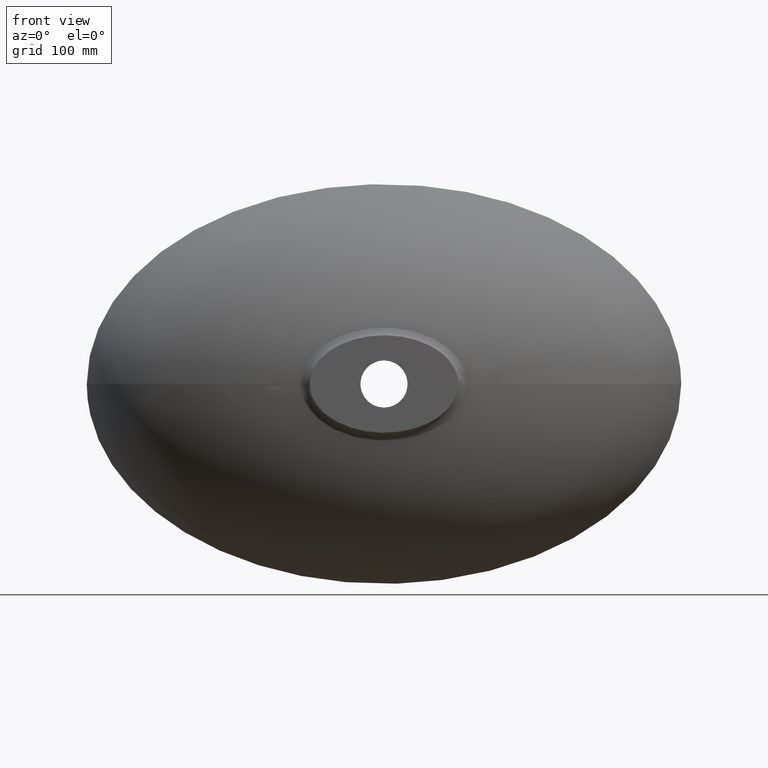
[diagram: clean part render]
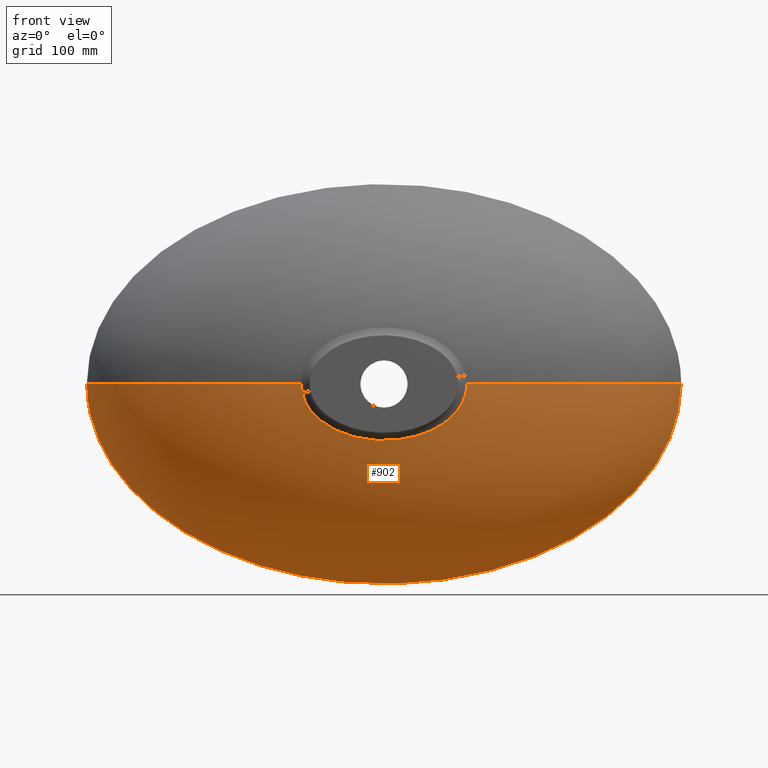
[diagram: same view with one face highlighted and labeled with its STEP entity id]
A machine part, front view. The second image highlights one B-rep face of the part: STEP entity #902.
In plain terms, the highlighted face is a freeform B-spline surface patch.
Its self-contained STEP definition (entity closure, byte-faithful):
#4 = ORIENTED_EDGE ( 'NONE', *, *, #1449, .F. ) ;
#71 = EDGE_CURVE ( 'NONE', #1730, #1499, #2945, .T. ) ;
#130 = CARTESIAN_POINT ( 'NONE',  ( -59.02924180658407500, -135.5562198857587400, -38.02974396639694300 ) ) ;
#155 = CARTESIAN_POINT ( 'NONE',  ( -173.8559272880811200, -64.17624587366015000, -119.6889019088782600 ) ) ;
#158 = CARTESIAN_POINT ( 'NONE',  ( -63.84233516379435300, -59.78963586575874000, -163.8237744246045500 ) ) ;
#163 = CARTESIAN_POINT ( 'NONE',  ( -122.5062706894699000, -61.70877774421897000, -146.8455914394254800 ) ) ;
#173 = CARTESIAN_POINT ( 'NONE',  ( 122.5062706894468200, -61.70877774415680500, -146.8455914395328000 ) ) ;
#175 = CARTESIAN_POINT ( 'NONE',  ( -213.2424459445009300, -66.64371400309627800, -84.32354849031565900 ) ) ;
#179 = CARTESIAN_POINT ( 'NONE',  ( 1.452532597303188600E-012, -58.96714648926533200, -169.8539801326967100 ) ) ;
#184 = CARTESIAN_POINT ( 'NONE',  ( 173.8559272880406500, -64.17624587358103800, -119.6889019090324800 ) ) ;
#189 = CARTESIAN_POINT ( 'NONE',  ( 63.84233516378849800, -59.78963586572481100, -163.8237744246594900 ) ) ;
#201 = CARTESIAN_POINT ( 'NONE',  ( 48.74870392146858900, -98.76286235298307800, 128.9041599598591900 ) ) ;
#211 = CARTESIAN_POINT ( 'NONE',  ( 43.13603856807236500, -135.1104343389680500, -50.52999021383957500 ) ) ;
#213 = CARTESIAN_POINT ( 'NONE',  ( -72.17867248968366300, -137.0000000000000000, 5.620241344210579200 ) ) ;
#254 = CARTESIAN_POINT ( 'NONE',  ( 213.2424459445662400, -66.64371400314385600, 84.32354849013060500 ) ) ;
#258 = CARTESIAN_POINT ( 'NONE',  ( 173.8559272881767600, -64.17624587370724500, 119.6889019087483300 ) ) ;
#259 = CARTESIAN_POINT ( 'NONE',  ( 122.5062706895887600, -61.70877774425552100, 146.8455914393535700 ) ) ;
#266 = CARTESIAN_POINT ( 'NONE',  ( 63.84233516388601300, -59.78963586576330900, 163.8237744245978100 ) ) ;
#268 = CARTESIAN_POINT ( 'NONE',  ( 8.237344878871289700E-011, -58.96714648926304400, 169.8539801327034100 ) ) ;
#272 = CARTESIAN_POINT ( 'NONE',  ( -63.84233516372609100, -59.78963586572935900, 163.8237744246408200 ) ) ;
#278 = CARTESIAN_POINT ( 'NONE',  ( -122.5062706893816400, -61.70877774415693300, 146.8455914394889700 ) ) ;
#279 = CARTESIAN_POINT ( 'NONE',  ( -173.8559272880131900, -64.17624587359813400, 119.6889019089305600 ) ) ;
#283 = CARTESIAN_POINT ( 'NONE',  ( -213.2424459444549100, -66.64371400304757700, 84.32354849034554400 ) ) ;
#285 = CARTESIAN_POINT ( 'NONE',  ( -236.1822520568000500, -68.43491308961702700, 46.62212627317471500 ) ) ;
#289 = CARTESIAN_POINT ( 'NONE',  ( -242.5347347814676200, -69.00974177607710700, 19.75045146153644600 ) ) ;
#293 = CARTESIAN_POINT ( 'NONE',  ( -243.5436501278094000, -69.10295723874942600, 5.125069546726873400 ) ) ;
#295 = CARTESIAN_POINT ( 'NONE',  ( -243.6307999830114000, -69.11118213251511100, 2.196458377168620100 ) ) ;
#299 = CARTESIAN_POINT ( 'NONE',  ( -243.6307999830119700, -69.11118213251576500, -2.862293735361731700E-014 ) ) ;
#301 = CARTESIAN_POINT ( 'NONE',  ( -263.1793806657407800, -48.91630512710069900, -1.994931997373328200E-014 ) ) ;
#302 = CARTESIAN_POINT ( 'NONE',  ( -72.47446810728394000, -137.0000000000000000, 1.458451061544785200 ) ) ;
#304 = CARTESIAN_POINT ( 'NONE',  ( 213.2424459444520200, -66.64371400301718000, -84.32354849050857100 ) ) ;
#308 = CARTESIAN_POINT ( 'NONE',  ( -263.1793806657412300, -48.91630512710124600, -2.349247688667063000 ) ) ;
#312 = CARTESIAN_POINT ( 'NONE',  ( -263.0855331633708800, -48.90941777544663400, -5.481577940223020900 ) ) ;
#315 = CARTESIAN_POINT ( 'NONE',  ( -261.9989204099375100, -48.83136112335640900, -21.12414883927776500 ) ) ;
#319 = CARTESIAN_POINT ( 'NONE',  ( -255.1562607832648000, -48.35001176878423500, -49.86287924189522900 ) ) ;
#321 = CARTESIAN_POINT ( 'NONE',  ( -230.4235846413977200, -46.85009963051857100, -90.15383580170768600 ) ) ;
#325 = CARTESIAN_POINT ( 'NONE',  ( -187.9017891536524300, -44.78389413392255100, -127.9390747141883900 ) ) ;
#327 = CARTESIAN_POINT ( 'NONE',  ( -132.4197209826210700, -42.71768863732229700, -156.9159428333175600 ) ) ;
#329 = B_SPLINE_CURVE_WITH_KNOTS ( 'NONE', 3,
 ( #2568, #4298, #3697, #3780, #2640, #761, #2009, #1915, #1324, #1537, #1556, #2352, #4275, #1685, #4134, #4094, #1976, #1941, #949, #2022, #988, #2348, #1991, #1920, #825, #2066, #493, #1617, #745, #1330, #1311, #1524, #1559, #1435, #556, #802, #987, #455, #490, #480, #471, #461, #1504, #1586, #1381, #792, #618, #1681, #469, #2335, #2329, #488, #2285, #130, #3800, #1372, #427, #1420, #4199, #4191, #4186, #4180, #4192, #4101, #4036, #4022, #3977, #3877 ),
 .UNSPECIFIED., .F., .F.,
 ( 4, 2, 2, 2, 2, 2, 2, 2, 2, 2, 2, 2, 2, 2, 2, 2, 2, 2, 2, 2, 2, 2, 2, 2, 2, 2, 2, 2, 2, 2, 2, 2, 2, 4 ),
 ( 0.2183000590646245200, 0.2248443422403199100, 0.2313886254160152600, 0.2330246962099391300, 0.2346607670038629600, 0.2379329085917106800, 0.2444771917674060900, 0.2477493333552537900, 0.2510214749431015100, 0.2575657581187969500, 0.2641100412944923400, 0.2673821828823400600, 0.2706543244701877800, 0.2771986076458832200, 0.2837428908215786600, 0.2902871739972741100, 0.2968314571729695500, 0.3099200235243604300, 0.3230085898757513200, 0.3295528730514467600, 0.3360971562271422000, 0.3491857225785330900, 0.3622742889299239700, 0.3688185721056194100, 0.3720907136934671300, 0.3753628552813148600, 0.3884514216327057400, 0.3949957048084011800, 0.4015399879840966200, 0.4080842711597920700, 0.4113564127476397900, 0.4146285543354875100, 0.4211728375111830600, 0.4277171206868785000 ),
 .UNSPECIFIED. ) ;
#331 = CARTESIAN_POINT ( 'NONE',  ( -69.02525204124819400, -41.11063991773930600, -174.9927978614268200 ) ) ;
#338 = CARTESIAN_POINT ( 'NONE',  ( 1.288235363333485400E-012, -40.42190475219499000, -181.4007009182672300 ) ) ;
#344 = CARTESIAN_POINT ( 'NONE',  ( 69.02525204124310700, -41.11063991771089100, -174.9927978614704500 ) ) ;
#345 = CARTESIAN_POINT ( 'NONE',  ( 132.4197209826008900, -42.71768863727021400, -156.9159428334028500 ) ) ;
#348 = CARTESIAN_POINT ( 'NONE',  ( 187.9017891536169600, -44.78389413385625800, -127.9390747143109600 ) ) ;
#354 = CARTESIAN_POINT ( 'NONE',  ( 230.4235846413546700, -46.85009963045228400, -90.15383580186100700 ) ) ;
#355 = CARTESIAN_POINT ( 'NONE',  ( 256.9228805076819000, -48.45714835006846500, -46.98495377345452100 ) ) ;
#359 = CARTESIAN_POINT ( 'NONE',  ( 266.3076307447705600, -49.14588351561123100, -1.248892372479834100E-010 ) ) ;
#369 = CARTESIAN_POINT ( 'NONE',  ( 256.9228805076766100, -48.45714835009074100, 46.98495377321626900 ) ) ;
#370 = CARTESIAN_POINT ( 'NONE',  ( 230.4235846414530000, -46.85009963055844700, 90.15383580156057500 ) ) ;
#373 = CARTESIAN_POINT ( 'NONE',  ( 187.9017891537342300, -44.78389413396204300, 127.9390747140849700 ) ) ;
#381 = CARTESIAN_POINT ( 'NONE',  ( 132.4197209827231900, -42.71768863735297800, 156.9159428332601500 ) ) ;
#382 = CARTESIAN_POINT ( 'NONE',  ( 69.02525204132712100, -41.11063991774324900, 174.9927978614211100 ) ) ;
#385 = CARTESIAN_POINT ( 'NONE',  ( 7.098261425525146500E-011, -40.42190475219320000, 181.4007009182722600 ) ) ;
#395 = CARTESIAN_POINT ( 'NONE',  ( -69.02525204118941800, -41.11063991771483500, 174.9927978614553300 ) ) ;
#396 = CARTESIAN_POINT ( 'NONE',  ( -132.4197209825451000, -42.71768863727047000, 156.9159428333677800 ) ) ;
#399 = CARTESIAN_POINT ( 'NONE',  ( -187.9017891535939700, -44.78389413387070300, 127.9390747142297500 ) ) ;
#412 = CARTESIAN_POINT ( 'NONE',  ( -230.4235846413580500, -46.85009963047785700, 90.15383580173133300 ) ) ;
#413 = CARTESIAN_POINT ( 'NONE',  ( -255.1562607832434300, -48.35001176876079400, 49.86287924190230600 ) ) ;
#416 = CARTESIAN_POINT ( 'NONE',  ( -261.9989204099285300, -48.83136112334649000, 21.12414883927876400 ) ) ;
#424 = CARTESIAN_POINT ( 'NONE',  ( -263.0855331633685500, -48.90941777544407600, 5.481577940223027100 ) ) ;
#425 = CARTESIAN_POINT ( 'NONE',  ( -263.1793806657403300, -48.91630512710015200, 2.349247688666981700 ) ) ;
#427 = CARTESIAN_POINT ( 'NONE',  ( -65.74196979346801600, -135.6178262052567600, -32.50356334726849600 ) ) ;
#434 = CARTESIAN_POINT ( 'NONE',  ( -263.1793806657407800, -48.91630512710069900, -1.994931997373328200E-014 ) ) ;
#435 = CARTESIAN_POINT ( 'NONE',  ( -279.0446928655382000, -25.71561693092820600, -1.778091562876227300E-014 ) ) ;
#440 = CARTESIAN_POINT ( 'NONE',  ( -149.5483607791291000, -119.4932239484619300, -1.170938346284344800E-014 ) ) ;
#441 = CARTESIAN_POINT ( 'NONE',  ( 204.3586650915047800, -91.44892514422022600, -38.45683207613970500 ) ) ;
#447 = CARTESIAN_POINT ( 'NONE',  ( -279.0446928655384800, -25.71561693092853000, -2.474542440657093900 ) ) ;
#452 = CARTESIAN_POINT ( 'NONE',  ( -278.9456824111993000, -25.71158569724517700, -5.773932361533109500 ) ) ;
#455 = CARTESIAN_POINT ( 'NONE',  ( 2.211029642755300000, -135.3504287895447100, -55.20215966721779200 ) ) ;
#458 = CARTESIAN_POINT ( 'NONE',  ( -277.7990212454800500, -25.66589838216443200, -22.25054792899835800 ) ) ;
#461 = CARTESIAN_POINT ( 'NONE',  ( -12.90504068536761500, -135.3579184512225000, -54.58554758473471200 ) ) ;
#466 = CARTESIAN_POINT ( 'NONE',  ( 237.8208096362755600, -68.56285588151703800, -43.92916754351696800 ) ) ;
#468 = CARTESIAN_POINT ( 'NONE',  ( -270.5765975104307000, -25.38415993915722900, -52.51911824181863200 ) ) ;
#469 = CARTESIAN_POINT ( 'NONE',  ( -41.99779509018209500, -135.4460698578190500, -47.32129674425665700 ) ) ;
#471 = CARTESIAN_POINT ( 'NONE',  ( -6.441797463400857500, -135.3522916885395100, -55.04936953875277800 ) ) ;
#473 = CARTESIAN_POINT ( 'NONE',  ( -244.4330199224356500, -24.50624682580491500, -94.91489024333330300 ) ) ;
#476 = CARTESIAN_POINT ( 'NONE',  ( -199.3898256838543800, -23.29687672067346000, -134.6617719912613900 ) ) ;
#480 = CARTESIAN_POINT ( 'NONE',  ( -4.269342483823853000, -135.3511058937487500, -55.14664769401988300 ) ) ;
#485 = CARTESIAN_POINT ( 'NONE',  ( -140.5426935410144200, -22.08750661553952800, -165.0922245721956500 ) ) ;
#487 = CARTESIAN_POINT ( 'NONE',  ( -73.28735179797017500, -21.14688542265464500, -184.0233555587163000 ) ) ;
#488 = CARTESIAN_POINT ( 'NONE',  ( -49.89613770482630900, -135.4885866795205200, -43.75400737023761600 ) ) ;
#490 = CARTESIAN_POINT ( 'NONE',  ( 0.05561608604010964000, -135.3501722888756300, -55.22296820835300200 ) ) ;
#491 = CARTESIAN_POINT ( 'NONE',  ( 8.186267975918611400E-013, -20.74376205427028100, -190.7173074326084900 ) ) ;
#493 = CARTESIAN_POINT ( 'NONE',  ( 49.89920118779402700, -135.4896470879369300, -43.66242667630709200 ) ) ;
#496 = CARTESIAN_POINT ( 'NONE',  ( 73.28735179796690600, -21.14688542263799300, -184.0233555587420500 ) ) ;
#506 = CARTESIAN_POINT ( 'NONE',  ( 140.5426935410016500, -22.08750661550901400, -165.0922245722460700 ) ) ;
#508 = CARTESIAN_POINT ( 'NONE',  ( 199.3898256838318700, -23.29687672063461100, -134.6617719913338600 ) ) ;
#512 = CARTESIAN_POINT ( 'NONE',  ( 244.4330199224084800, -24.50624682576605900, -94.91489024342402600 ) ) ;
#514 = CARTESIAN_POINT ( 'NONE',  ( -22.49756534239881800, -135.0534406494036000, 56.32831686963403000 ) ) ;
#517 = CARTESIAN_POINT ( 'NONE',  ( 272.4439959095722700, -25.44686801867035100, -49.49084881320841600 ) ) ;
#519 = CARTESIAN_POINT ( 'NONE',  ( -228.5580210293836700, -80.15821008482684800, -1.214306433183765000E-014 ) ) ;
#523 = CARTESIAN_POINT ( 'NONE',  ( 282.3450413435217000, -25.84999138705378400, -7.388888401130898600E-011 ) ) ;
#525 = CARTESIAN_POINT ( 'NONE',  ( 272.4439959095686800, -25.44686801868336800, 49.49084881306746600 ) ) ;
#527 = CARTESIAN_POINT ( 'NONE',  ( 244.4330199224709200, -24.50624682582815000, 94.91489024324634700 ) ) ;
#530 = CARTESIAN_POINT ( 'NONE',  ( 199.3898256839063700, -23.29687672069647100, 134.6617719912004000 ) ) ;
#537 = CARTESIAN_POINT ( 'NONE',  ( 140.5426935410793900, -22.08750661555738400, 165.0922245721619400 ) ) ;
#539 = CARTESIAN_POINT ( 'NONE',  ( 73.28735179802029600, -21.14688542265685500, 184.0233555587132900 ) ) ;
#540 = CARTESIAN_POINT ( 'NONE',  ( 22.49756534241760900, -135.0534406494046200, 56.32831686962708100 ) ) ;
#544 = CARTESIAN_POINT ( 'NONE',  ( 4.508255256872003100E-011, -20.74376205426914800, 190.7173074326119000 ) ) ;
#551 = CARTESIAN_POINT ( 'NONE',  ( -73.28735179793282800, -21.14688542264023500, 184.0233555587335000 ) ) ;
#553 = CARTESIAN_POINT ( 'NONE',  ( -140.5426935409662100, -22.08750661550911700, 165.0922245722256300 ) ) ;
#556 = CARTESIAN_POINT ( 'NONE',  ( 21.41057721125741900, -135.3728711537178000, -53.35261967520378300 ) ) ;
#558 = CARTESIAN_POINT ( 'NONE',  ( -199.3898256838172400, -23.29687672064304800, 134.6617719912860300 ) ) ;
#560 = CARTESIAN_POINT ( 'NONE',  ( -51.86703411855977200, -136.9999999999999400, 33.98184993974604900 ) ) ;
#564 = CARTESIAN_POINT ( 'NONE',  ( -244.4330199224105500, -24.50624682578103400, 94.91489024334741500 ) ) ;
#566 = CARTESIAN_POINT ( 'NONE',  ( -270.5765975104171700, -25.38415993914347600, 52.51911824182283800 ) ) ;
#569 = CARTESIAN_POINT ( 'NONE',  ( -277.7990212454744800, -25.66589838215860600, 22.25054792899892300 ) ) ;
#575 = CARTESIAN_POINT ( 'NONE',  ( -278.9456824111979400, -25.71158569724366700, 5.773932361533082000 ) ) ;
#577 = CARTESIAN_POINT ( 'NONE',  ( -279.0446928655379100, -25.71561693092788700, 2.474542440657014000 ) ) ;
#590 = CARTESIAN_POINT ( 'NONE',  ( -279.0446928655382000, -25.71561693092820600, -1.778091562876227300E-014 ) ) ;
#592 = CARTESIAN_POINT ( 'NONE',  ( -286.8453108452988500, -8.733984173802111800, -2.623769257414920700E-014 ) ) ;
#594 = CARTESIAN_POINT ( 'NONE',  ( -286.8453108452989700, -8.733984173802225500, -2.538854291191674100 ) ) ;
#603 = CARTESIAN_POINT ( 'NONE',  ( -286.7440151966554800, -8.732576187990321900, -5.923993346113801900 ) ) ;
#606 = CARTESIAN_POINT ( 'NONE',  ( -285.5706246533415500, -8.716619015454501400, -22.82862556492825200 ) ) ;
#608 = CARTESIAN_POINT ( 'NONE',  ( -278.1782482854395700, -8.618216451480353900, -53.88138413480470500 ) ) ;
#609 = CARTESIAN_POINT ( 'NONE',  ( -183.2180444188431900, -89.90787269860409500, -73.84730781309059500 ) ) ;
#612 = CARTESIAN_POINT ( 'NONE',  ( -251.3819778480367400, -8.311588430191175500, -97.34156048842871200 ) ) ;
#617 = CARTESIAN_POINT ( 'NONE',  ( -205.1205605789160100, -7.889192686577391800, -138.0759043912319700 ) ) ;
#618 = CARTESIAN_POINT ( 'NONE',  ( -37.95135035798434600, -135.4272161697600400, -48.88955592926557600 ) ) ;
#621 = CARTESIAN_POINT ( 'NONE',  ( -144.6084392923928000, -7.466796942962744800, -169.2191734916977200 ) ) ;
#623 = CARTESIAN_POINT ( 'NONE',  ( -75.43468743075926900, -7.138266920150325500, -188.5489952582663900 ) ) ;
#626 = CARTESIAN_POINT ( 'NONE',  ( 3.343950374677353400E-013, -6.997468338943213500, -195.3695863964401800 ) ) ;
#627 = CARTESIAN_POINT ( 'NONE',  ( 22.49756534240613300, -135.0534406494035700, -56.32831686963705700 ) ) ;
#631 = CARTESIAN_POINT ( 'NONE',  ( 246.5357951563827900, -69.38534525800855600, -1.571684547319159100E-010 ) ) ;
#632 = CARTESIAN_POINT ( 'NONE',  ( 75.43468743075801800, -7.138266920144512400, -188.5489952582756500 ) ) ;
#637 = CARTESIAN_POINT ( 'NONE',  ( 144.6084392923880300, -7.466796942952091100, -169.2191734917160800 ) ) ;
#639 = CARTESIAN_POINT ( 'NONE',  ( 205.1205605789075200, -7.889192686563832000, -138.0759043912583500 ) ) ;
#641 = CARTESIAN_POINT ( 'NONE',  ( -91.21790903900742400, -134.2785398046957000, -8.054608896907396600E-015 ) ) ;
#643 = CARTESIAN_POINT ( 'NONE',  ( 251.3819778480265100, -8.311588430177614800, -97.34156048846175200 ) ) ;
#646 = CARTESIAN_POINT ( 'NONE',  ( 280.0922676023965900, -8.640118452996814500, -50.77708582385680100 ) ) ;
#648 = CARTESIAN_POINT ( 'NONE',  ( 290.2218324667499600, -8.780917034203604000, -2.683890205157804600E-011 ) ) ;
#651 = CARTESIAN_POINT ( 'NONE',  ( 280.0922676023951100, -8.640118453001361900, 50.77708582380555000 ) ) ;
#655 = CARTESIAN_POINT ( 'NONE',  ( 251.3819778480499300, -8.311588430199304200, 97.34156048839709300 ) ) ;
#658 = CARTESIAN_POINT ( 'NONE',  ( 163.0750806057048100, -75.43432884008639400, 113.2229714151519500 ) ) ;
#662 = CARTESIAN_POINT ( 'NONE',  ( 205.1205605789355100, -7.889192686585441400, 138.0759043912097800 ) ) ;
#663 = CARTESIAN_POINT ( 'NONE',  ( -228.4761864355602900, -80.15033694942025000, -4.846833042213949800 ) ) ;
#665 = EDGE_CURVE ( 'NONE', #3235, #2720, #329, .T. ) ;
#667 = CARTESIAN_POINT ( 'NONE',  ( 144.6084392924173000, -7.466796942968987800, 169.2191734916853800 ) ) ;
#669 = CARTESIAN_POINT ( 'NONE',  ( 75.43468743077808400, -7.138266920151102600, 188.5489952582650800 ) ) ;
#673 = CARTESIAN_POINT ( 'NONE',  ( 1.691484245466075400E-011, -6.997468338942821800, 195.3695863964413500 ) ) ;
#679 = CARTESIAN_POINT ( 'NONE',  ( -75.43468743074528500, -7.138266920145297500, 188.5489952582724700 ) ) ;
#680 = CARTESIAN_POINT ( 'NONE',  ( -163.0750806056101700, -75.43432884004134600, -113.2229714152899900 ) ) ;
#683 = CARTESIAN_POINT ( 'NONE',  ( -144.6084392923747800, -7.466796942952125700, 169.2191734917086300 ) ) ;
#684 = CARTESIAN_POINT ( 'NONE',  ( -205.1205605789020900, -7.889192686566775400, 138.0759043912409300 ) ) ;
#685 = CARTESIAN_POINT ( 'NONE',  ( 200.0313494025753900, -77.79626946248753000, 79.76061957949039500 ) ) ;
#688 = CARTESIAN_POINT ( 'NONE',  ( -251.3819778480273000, -8.311588430182837300, 97.34156048843384200 ) ) ;
#691 = CARTESIAN_POINT ( 'NONE',  ( -114.9054466868185900, -73.07238821757647400, 138.9344128839050300 ) ) ;
#693 = CARTESIAN_POINT ( 'NONE',  ( 188.3459208316140800, -104.6170543641828500, -1.667099276368835300E-010 ) ) ;
#696 = CARTESIAN_POINT ( 'NONE',  ( -278.1782482854343900, -8.618216451475550600, 53.88138413480621800 ) ) ;
#697 = CARTESIAN_POINT ( 'NONE',  ( -285.5706246533393400, -8.716619015452465600, 22.82862556492839400 ) ) ;
#698 = CARTESIAN_POINT ( 'NONE',  ( 204.3586650914990600, -91.44892514424152800, 38.45683207581186700 ) ) ;
#699 = CARTESIAN_POINT ( 'NONE',  ( 211.8590736748579400, -92.10937619236186400, -1.718868251420896600E-010 ) ) ;
#700 = CARTESIAN_POINT ( 'NONE',  ( -286.7440151966550300, -8.732576187989794300, 5.923993346113723700 ) ) ;
#702 = CARTESIAN_POINT ( 'NONE',  ( 1.377869713627983700E-012, -83.74366291602072500, -148.9081484512524300 ) ) ;
#705 = CARTESIAN_POINT ( 'NONE',  ( 183.2180444189041900, -89.90787269864227900, 73.84730781288816100 ) ) ;
#711 = CARTESIAN_POINT ( 'NONE',  ( -286.8453108452988000, -8.733984173801999900, 2.538854291191577200 ) ) ;
#712 = CARTESIAN_POINT ( 'NONE',  ( -286.8453108452988500, -8.733984173802111800, -2.623769257414920700E-014 ) ) ;
#715 = CARTESIAN_POINT ( 'NONE',  ( -290.0000000000000600, 0.0000000000000000000, -3.816391647148975600E-014 ) ) ;
#717 = CARTESIAN_POINT ( 'NONE',  ( 105.2408941095026300, -85.94516640984112100, 128.6674358289996600 ) ) ;
#723 = CARTESIAN_POINT ( 'NONE',  ( -290.0000000000000600, 0.0000000000000000000, -2.565996604522496700 ) ) ;
#724 = CARTESIAN_POINT ( 'NONE',  ( -289.8978724291357600, 0.0000000000000000000, -5.987325410552379900 ) ) ;
#725 = CARTESIAN_POINT ( 'NONE',  ( 149.3624307226031400, -87.92651955424776100, 104.8390311558316200 ) ) ;
#727 = CARTESIAN_POINT ( 'NONE',  ( -288.7146899587345400, 0.0000000000000000000, -23.07256972886458600 ) ) ;
#728 = CARTESIAN_POINT ( 'NONE',  ( -54.83831650720871700, -84.40411396414037900, 143.5959816714344600 ) ) ;
#739 = CARTESIAN_POINT ( 'NONE',  ( -281.2596886097431400, 0.0000000000000000000, -54.45593140531499200 ) ) ;
#740 = CARTESIAN_POINT ( 'NONE',  ( -254.2143952860994600, 0.0000000000000000000, -98.35992181344710200 ) ) ;
#741 = CARTESIAN_POINT ( 'NONE',  ( 5.182915458029706900E-011, -116.0751267963101600, 107.5036538279099400 ) ) ;
#742 = CARTESIAN_POINT ( 'NONE',  ( 54.83831650735957900, -84.40411396416762100, 143.5959816713873600 ) ) ;
#745 = CARTESIAN_POINT ( 'NONE',  ( 44.08907366775646600, -135.4564233793999200, -46.45622005298680800 ) ) ;
#756 = CARTESIAN_POINT ( 'NONE',  ( -207.4681364742390600, 0.0000000000000000000, -139.5044365947469500 ) ) ;
#757 = CARTESIAN_POINT ( 'NONE',  ( -146.2788580815367000, 0.0000000000000000000, -170.9372657958255400 ) ) ;
#760 = CARTESIAN_POINT ( 'NONE',  ( -76.32195028835920400, 0.0000000000000000000, -190.4218675129827400 ) ) ;
#761 = CARTESIAN_POINT ( 'NONE',  ( 78.65351292718250400, -135.7822062976969400, -13.29364158786734300 ) ) ;
#764 = CARTESIAN_POINT ( 'NONE',  ( 1.505332660833496800E-013, -135.0290147824475800, -58.37935478443013400 ) ) ;
#772 = CARTESIAN_POINT ( 'NONE',  ( 2.982911227050744100E-014, 0.0000000000000000000, -197.2890662435087000 ) ) ;
#774 = CARTESIAN_POINT ( 'NONE',  ( 76.32195028835916200, 0.0000000000000000000, -190.4218675129826000 ) ) ;
#779 = CARTESIAN_POINT ( 'NONE',  ( -43.13603856806474100, -135.1104343389679300, 50.52999021383249100 ) ) ;
#785 = CARTESIAN_POINT ( 'NONE',  ( 146.2788580815367500, 0.0000000000000000000, -170.9372657958254800 ) ) ;
#787 = CARTESIAN_POINT ( 'NONE',  ( 207.4681364742390000, 0.0000000000000000000, -139.5044365947468600 ) ) ;
#791 = CARTESIAN_POINT ( 'NONE',  ( 254.2143952860995700, 0.0000000000000000000, -98.35992181344708700 ) ) ;
#792 = CARTESIAN_POINT ( 'NONE',  ( -35.91198369003833300, -135.4187045102635200, -49.59193169764885300 ) ) ;
#794 = CARTESIAN_POINT ( 'NONE',  ( 181.6763715257610300, -104.1152664775166400, 34.50463223786329800 ) ) ;
#801 = CARTESIAN_POINT ( 'NONE',  ( 283.1914952757178400, 0.0000000000000000000, -51.31993209044834700 ) ) ;
#802 = CARTESIAN_POINT ( 'NONE',  ( 12.92644355625564900, -135.3579292026421400, -54.58356806347076400 ) ) ;
#805 = CARTESIAN_POINT ( 'NONE',  ( 293.4042523621409900, 0.0000000000000000000, 7.920804729815802100E-014 ) ) ;
#807 = CARTESIAN_POINT ( 'NONE',  ( 200.0313494024618700, -77.79626946236625400, -79.76061957989169600 ) ) ;
#809 = CARTESIAN_POINT ( 'NONE',  ( 283.1914952757175600, 0.0000000000000000000, 51.31993209044843200 ) ) ;
#811 = CARTESIAN_POINT ( 'NONE',  ( -227.5288462381529100, -80.06110808146678400, -18.67828771424765600 ) ) ;
#816 = CARTESIAN_POINT ( 'NONE',  ( 254.2143952860994000, 0.0000000000000000000, 98.35992181344717300 ) ) ;
#817 = CARTESIAN_POINT ( 'NONE',  ( 207.4681364742389500, 0.0000000000000000000, 139.5044365947470100 ) ) ;
#818 = CARTESIAN_POINT ( 'NONE',  ( 106.7116408323920100, -117.8303658744660000, 75.67003446995811100 ) ) ;
#819 = CARTESIAN_POINT ( 'NONE',  ( 146.2788580815367500, 0.0000000000000000000, 170.9372657958255400 ) ) ;
#821 = CARTESIAN_POINT ( 'NONE',  ( -209.2839333945711100, -91.88262133250231000, 4.486630408864632700 ) ) ;
#822 = CARTESIAN_POINT ( 'NONE',  ( 237.8208096362694700, -68.56285588154359800, 43.92916754321720400 ) ) ;
#823 = CARTESIAN_POINT ( 'NONE',  ( -93.55596842595177500, -99.93370075518919300, 115.4860338121955200 ) ) ;
#825 = CARTESIAN_POINT ( 'NONE',  ( 54.57265281141089000, -135.5215259275417500, -40.97348918523715600 ) ) ;
#829 = CARTESIAN_POINT ( 'NONE',  ( 76.32195028835913300, 0.0000000000000000000, 190.4218675129826900 ) ) ;
#832 = CARTESIAN_POINT ( 'NONE',  ( -7.293970115396231100E-014, 0.0000000000000000000, 197.2890662435087800 ) ) ;
#834 = CARTESIAN_POINT ( 'NONE',  ( -209.3589374804060100, -91.88922584298489900, -2.255140518769849200E-014 ) ) ;
#837 = CARTESIAN_POINT ( 'NONE',  ( -76.32195028835930400, 0.0000000000000000000, 190.4218675129826900 ) ) ;
#840 = ORIENTED_EDGE ( 'NONE', *, *, #1981, .T. ) ;
#842 = CARTESIAN_POINT ( 'NONE',  ( -146.2788580815369000, 0.0000000000000000000, 170.9372657958255400 ) ) ;
#844 = CARTESIAN_POINT ( 'NONE',  ( -207.4681364742391500, 0.0000000000000000000, 139.5044365947469200 ) ) ;
#845 = CARTESIAN_POINT ( 'NONE',  ( -149.3624307224492000, -87.92651955416018000, 104.8390311560309100 ) ) ;
#846 = CARTESIAN_POINT ( 'NONE',  ( -254.2143952860995700, 0.0000000000000000000, 98.35992181344711600 ) ) ;
#848 = CARTESIAN_POINT ( 'NONE',  ( -221.5643126384828500, -79.51086339570888100, 44.09203897636336900 ) ) ;
#850 = CARTESIAN_POINT ( 'NONE',  ( -281.2596886097431900, 0.0000000000000000000, 54.45593140531494900 ) ) ;
#856 = CARTESIAN_POINT ( 'NONE',  ( -288.7146899587346500, 0.0000000000000000000, 23.07256972886446500 ) ) ;
#857 = CARTESIAN_POINT ( 'NONE',  ( -289.8978724291357600, 0.0000000000000000000, 5.987325410552257300 ) ) ;
#858 = CARTESIAN_POINT ( 'NONE',  ( -243.6307999830119700, -69.11118213251576500, -2.862293735361731700E-014 ) ) ;
#859 = CARTESIAN_POINT ( 'NONE',  ( -183.2180444187997100, -89.90787269856502900, 73.84730781312319400 ) ) ;
#860 = CARTESIAN_POINT ( 'NONE',  ( -290.0000000000000600, 0.0000000000000000000, 2.565996604522374500 ) ) ;
#861 = CARTESIAN_POINT ( 'NONE',  ( -290.0000000000000600, 0.0000000000000000000, -3.816391647148975600E-014 ) ) ;
#892 = CARTESIAN_POINT ( 'NONE',  ( 231.2858408235385100, -80.42064793176004400, -1.668559624660583900E-010 ) ) ;
#902 = ADVANCED_FACE ( 'NONE', ( #1418 ), #2312, .T. ) ;
#933 = CARTESIAN_POINT ( 'NONE',  ( -227.5288462381425300, -80.06110808145544400, 18.67828771424904500 ) ) ;
#935 = CARTESIAN_POINT ( 'NONE',  ( 59.87695928763086100, -71.23532328909684000, 155.0256173939811800 ) ) ;
#938 = CARTESIAN_POINT ( 'NONE',  ( 132.7799140233056800, -101.4390644152826900, 94.08657591867965700 ) ) ;
#943 = CARTESIAN_POINT ( 'NONE',  ( -186.1227377296639800, -104.4497917352909900, 1.725231611901404800 ) ) ;
#949 = CARTESIAN_POINT ( 'NONE',  ( 65.76873550853690600, -135.6180957697968700, -32.47540414180969700 ) ) ;
#987 = CARTESIAN_POINT ( 'NONE',  ( 8.656614771713446300, -135.3532905086494200, -54.96734779880772900 ) ) ;
#988 = CARTESIAN_POINT ( 'NONE',  ( 60.84503682232928400, -135.5717193316509100, -36.67574196739742100 ) ) ;
#1005 = CARTESIAN_POINT ( 'NONE',  ( 163.0750806055694700, -75.43432883996555900, -113.2229714154536600 ) ) ;
#1015 = CARTESIAN_POINT ( 'NONE',  ( -208.4156887518952000, -91.80777021371029900, 17.29024265249847400 ) ) ;
#1017 = CARTESIAN_POINT ( 'NONE',  ( -59.87695928753978300, -71.23532328909247700, -155.0256173939884800 ) ) ;
#1019 = CARTESIAN_POINT ( 'NONE',  ( 1.444102890249901100E-012, -70.44800974827813900, -160.7460759521774800 ) ) ;
#1025 = CARTESIAN_POINT ( 'NONE',  ( -209.3589374804060100, -91.88922584298489900, -2.255140518769849200E-014 ) ) ;
#1027 = CARTESIAN_POINT ( 'NONE',  ( -186.1227377296644600, -104.4497917352913700, -2.200930410145574000E-014 ) ) ;
#1030 = CARTESIAN_POINT ( 'NONE',  ( -54.83831650727312700, -84.40411396416394000, -143.5959816713949200 ) ) ;
#1032 = CARTESIAN_POINT ( 'NONE',  ( 75.19243120168391700, -116.9989368374521900, 92.87698613130255900 ) ) ;
#1038 = CARTESIAN_POINT ( 'NONE',  ( -228.4761864355575900, -80.15033694941733700, 4.846833042214005800 ) ) ;
#1040 = CARTESIAN_POINT ( 'NONE',  ( -105.2408941093074300, -85.94516640976198100, 128.6674358291476800 ) ) ;
#1043 = CARTESIAN_POINT ( 'NONE',  ( -228.5580210293836700, -80.15821008482684800, -1.214306433183765000E-014 ) ) ;
#1045 = ORIENTED_EDGE ( 'NONE', *, *, #665, .T. ) ;
#1050 = CARTESIAN_POINT ( 'NONE',  ( -132.7799140231671500, -101.4390644152160800, 94.08657591887292400 ) ) ;
#1051 = CARTESIAN_POINT ( 'NONE',  ( 114.9054466870243400, -73.07238821767080600, 138.9344128837613000 ) ) ;
#1055 = CARTESIAN_POINT ( 'NONE',  ( -149.3624307225132700, -87.92651955420996000, -104.8390311559738400 ) ) ;
#1064 = CARTESIAN_POINT ( 'NONE',  ( -209.3589374804055000, -91.88922584298438800, 1.922841603799089400 ) ) ;
#1187 = CARTESIAN_POINT ( 'NONE',  ( -208.4156887519050400, -91.80777021371977800, -17.29024265249706400 ) ) ;
#1224 = CARTESIAN_POINT ( 'NONE',  ( -200.0313494025111300, -77.79626946244204100, -79.76061957968688900 ) ) ;
#1240 = CARTESIAN_POINT ( 'NONE',  ( -85.60718578487535500, -135.3302671415774800, -0.7572530640287883400 ) ) ;
#1241 = CARTESIAN_POINT ( 'NONE',  ( -228.5580210293836700, -80.15821008482684800, -1.214306433183765000E-014 ) ) ;
#1242 = CARTESIAN_POINT ( 'NONE',  ( -242.5347347814780200, -69.00974177608897300, -19.75045146153518200 ) ) ;
#1243 = CARTESIAN_POINT ( 'NONE',  ( 130.8900859511623800, -118.6617949114322000, -53.29818612053242100 ) ) ;
#1247 = CARTESIAN_POINT ( 'NONE',  ( 151.3322242794880000, -119.5856049525737900, -1.309444097533327100E-010 ) ) ;
#1252 = CARTESIAN_POINT ( 'NONE',  ( 145.9806337784148700, -119.3084619402333300, -27.75270338773021100 ) ) ;
#1259 = CARTESIAN_POINT ( 'NONE',  ( -75.19243120155360300, -116.9989368374189800, 92.87698613141532200 ) ) ;
#1263 = CARTESIAN_POINT ( 'NONE',  ( 145.9806337784110300, -119.3084619402422000, 27.75270338748045200 ) ) ;
#1266 = CARTESIAN_POINT ( 'NONE',  ( 130.8900859512342300, -118.6617949114747600, 53.29818612021745100 ) ) ;
#1275 = CARTESIAN_POINT ( 'NONE',  ( -106.7116408322890800, -117.8303658744293600, 75.67003447010991100 ) ) ;
#1278 = CARTESIAN_POINT ( 'NONE',  ( -130.8900859511641100, -118.6617949114425100, 53.29818612039650100 ) ) ;
#1311 = CARTESIAN_POINT ( 'NONE',  ( 38.08764605043079900, -135.4278074977798400, -48.83998296613123800 ) ) ;
#1312 = CARTESIAN_POINT ( 'NONE',  ( -202.9492903799722100, -91.34618831450828200, 40.81619712512885900 ) ) ;
#1320 = CARTESIAN_POINT ( 'NONE',  ( 105.2408941093687200, -85.94516640976182500, -128.6674358291957700 ) ) ;
#1324 = CARTESIAN_POINT ( 'NONE',  ( 77.86877130654096400, -135.7701009250114100, -15.33030523705762800 ) ) ;
#1330 = CARTESIAN_POINT ( 'NONE',  ( 40.10886009665182400, -135.4368627623083500, -48.08984548804943400 ) ) ;
#1332 = CARTESIAN_POINT ( 'NONE',  ( 7.010789756347164500E-011, -98.26107446629534100, 133.6824600202437500 ) ) ;
#1343 = CARTESIAN_POINT ( 'NONE',  ( 9.683533295603654500E-012, -135.0290147824475500, 58.37935478443120700 ) ) ;
#1358 = CARTESIAN_POINT ( 'NONE',  ( -180.4232355647300200, -104.0372105840327600, -36.62220739162623300 ) ) ;
#1365 = CARTESIAN_POINT ( 'NONE',  ( -162.8793321101565500, -102.9444280752480400, 66.26825954207961900 ) ) ;
#1372 = CARTESIAN_POINT ( 'NONE',  ( -64.13838810366996800, -135.6019690365764100, -33.96273454389430700 ) ) ;
#1374 = CARTESIAN_POINT ( 'NONE',  ( 162.8793321102503700, -102.9444280753067900, 66.26825954185164800 ) ) ;
#1381 = CARTESIAN_POINT ( 'NONE',  ( -29.75199870604454200, -135.3955252400503500, -51.49963435593878100 ) ) ;
#1383 = CARTESIAN_POINT ( 'NONE',  ( -59.87695928747189800, -71.23532328906436800, 155.0256173940268800 ) ) ;
#1387 = CARTESIAN_POINT ( 'NONE',  ( -200.0313494024653400, -77.79626946239545800, 79.76061957971856500 ) ) ;
#1393 = CARTESIAN_POINT ( 'NONE',  ( 132.7799140231898900, -101.4390644152056600, -94.08657591898106900 ) ) ;
#1394 = CARTESIAN_POINT ( 'NONE',  ( 48.74870392138563300, -98.76286235295953000, -128.9041599599246700 ) ) ;
#1407 = CARTESIAN_POINT ( 'NONE',  ( -202.9492903799956300, -91.34618831453079200, -40.81619712511911000 ) ) ;
#1408 = CARTESIAN_POINT ( 'NONE',  ( 183.2180444187964100, -89.90787269854053000, -73.84730781330155500 ) ) ;
#1418 = FACE_OUTER_BOUND ( 'NONE', #3970, .T. ) ;
#1420 = CARTESIAN_POINT ( 'NONE',  ( -68.77348846677912800, -135.6501085698519400, -29.42751848128584100 ) ) ;
#1421 = CARTESIAN_POINT ( 'NONE',  ( -185.2839861934278400, -104.3879045625977000, 15.51337948244360200 ) ) ;
#1429 = CARTESIAN_POINT ( 'NONE',  ( -163.0750806055425800, -75.43432883998201500, 113.2229714153453800 ) ) ;
#1435 = CARTESIAN_POINT ( 'NONE',  ( 25.62478082208127700, -135.3832445600627600, -52.50460666247221300 ) ) ;
#1449 = EDGE_CURVE ( 'NONE', #3235, #1730, #1533, .T. ) ;
#1455 = CARTESIAN_POINT ( 'NONE',  ( -48.74870392139065000, -98.76286235298023500, -128.9041599598663800 ) ) ;
#1486 = CARTESIAN_POINT ( 'NONE',  ( -43.13603856807513600, -135.1104343389698100, -50.52999021382228800 ) ) ;
#1499 = VERTEX_POINT ( 'NONE', #3935 ) ;
#1504 = CARTESIAN_POINT ( 'NONE',  ( -17.16616820340356500, -135.3643933956450700, -54.04921589173585500 ) ) ;
#1510 = CARTESIAN_POINT ( 'NONE',  ( -105.2408941093907100, -85.94516640981177600, -128.6674358290783900 ) ) ;
#1512 = CARTESIAN_POINT ( 'NONE',  ( 149.3624307224746700, -87.92651955414641000, -104.8390311561424400 ) ) ;
#1524 = CARTESIAN_POINT ( 'NONE',  ( 33.98569832445425500, -135.4111734017149600, -50.21268472363155400 ) ) ;
#1533 = B_SPLINE_CURVE_WITH_KNOTS ( 'NONE', 3,
 ( #3927, #3930, #4102, #4124, #4163, #4184, #3921, #3918, #3913, #3911, #3908, #3902 ),
 .UNSPECIFIED., .F., .F.,
 ( 4, 1, 1, 1, 2, 1, 1, 1, 4 ),
 ( 0.03174155405482951400, 0.1468164821776848900, 0.2936329643553697900, 0.4404494465330546800, 0.5872659287107395700, 0.6904494465330548400, 0.7936329643553697900, 0.8968164821776847300, 1.000000000000000000 ),
 .UNSPECIFIED. ) ;
#1534 = CARTESIAN_POINT ( 'NONE',  ( -72.50000000000001400, -136.9999999999999700, -4.228388472693467300E-015 ) ) ;
#1537 = CARTESIAN_POINT ( 'NONE',  ( 77.22534868303921500, -135.7603662291568000, -16.82722165446222100 ) ) ;
#1545 = CARTESIAN_POINT ( 'NONE',  ( 8.191128265525084600E-011, -70.44800974827600700, 160.7460759521844700 ) ) ;
#1548 = CARTESIAN_POINT ( 'NONE',  ( -186.1227377296649800, -104.4497917352917500, -1.725231611901479900 ) ) ;
#1550 = CARTESIAN_POINT ( 'NONE',  ( -63.55359882152487900, -137.0000000000000300, 23.95946813404481900 ) ) ;
#1556 = CARTESIAN_POINT ( 'NONE',  ( 76.76021192482927800, -135.7534632078688300, -17.80563001111309500 ) ) ;
#1557 = CARTESIAN_POINT ( 'NONE',  ( -85.57687914330924200, -135.3300228829078800, 1.766923816067122300 ) ) ;
#1559 = CARTESIAN_POINT ( 'NONE',  ( 31.89864547260103900, -135.4035777076173300, -50.83665737791761100 ) ) ;
#1570 = CARTESIAN_POINT ( 'NONE',  ( -114.9054466869063900, -73.07238821763583300, -138.9344128838377200 ) ) ;
#1577 = CARTESIAN_POINT ( 'NONE',  ( 7.773602940637169100E-011, -83.74366291601894800, 148.9081484512595600 ) ) ;
#1584 = CARTESIAN_POINT ( 'NONE',  ( -209.2839333945736400, -91.88262133250475500, -4.486630408864590100 ) ) ;
#1586 = CARTESIAN_POINT ( 'NONE',  ( -25.58973690007285000, -135.3832009184085300, -52.50668640722008000 ) ) ;
#1588 = CARTESIAN_POINT ( 'NONE',  ( 54.83831650726755700, -84.40411396413667000, -143.5959816714549800 ) ) ;
#1596 = CARTESIAN_POINT ( 'NONE',  ( -85.60718578487529800, -135.3302671415774800, -8.348356728138384100E-015 ) ) ;
#1604 = CARTESIAN_POINT ( 'NONE',  ( 1.264241408293292300E-012, -98.26107446629662000, -133.6824600202367000 ) ) ;
#1617 = CARTESIAN_POINT ( 'NONE',  ( 46.04813349996216200, -135.4669426190273800, -45.57286154096065200 ) ) ;
#1642 = CARTESIAN_POINT ( 'NONE',  ( 61.19237990537127600, -135.1837119398407200, 41.21350051008582200 ) ) ;
#1646 = CARTESIAN_POINT ( 'NONE',  ( -228.5580210293831000, -80.15821008482622300, 2.077214160948827700 ) ) ;
#1669 = CARTESIAN_POINT ( 'NONE',  ( -290.0000000000000600, 0.0000000000000000000, -3.816391647148975600E-014 ) ) ;
#1671 = CARTESIAN_POINT ( 'NONE',  ( -290.0000000000000600, 0.0000000000000000000, -2.565996604522496700 ) ) ;
#1678 = CARTESIAN_POINT ( 'NONE',  ( -289.8978724291357600, 0.0000000000000000000, -5.987325410552379900 ) ) ;
#1679 = CARTESIAN_POINT ( 'NONE',  ( 93.55596842612766300, -99.93370075524939000, 115.4860338120519300 ) ) ;
#1681 = CARTESIAN_POINT ( 'NONE',  ( -40.98762264999278700, -135.4412001542243900, -47.72754123867981900 ) ) ;
#1684 = VERTEX_POINT ( 'NONE', #3879 ) ;
#1685 = CARTESIAN_POINT ( 'NONE',  ( 72.23307878448883900, -135.6916524246614400, -25.19778448165983400 ) ) ;
#1687 = CARTESIAN_POINT ( 'NONE',  ( -288.7146899587345400, 0.0000000000000000000, -23.07256972886458600 ) ) ;
#1699 = CARTESIAN_POINT ( 'NONE',  ( -281.2596886097431400, 0.0000000000000000000, -54.45593140531499200 ) ) ;
#1701 = CARTESIAN_POINT ( 'NONE',  ( -254.2143952860994600, 0.0000000000000000000, -98.35992181344710200 ) ) ;
#1710 = CARTESIAN_POINT ( 'NONE',  ( -207.4681364742390600, 0.0000000000000000000, -139.5044365947469500 ) ) ;
#1730 = VERTEX_POINT ( 'NONE', #3743 ) ;
#1750 = ORIENTED_EDGE ( 'NONE', *, *, #2680, .T. ) ;
#1755 = CARTESIAN_POINT ( 'NONE',  ( -146.2788580815367000, 0.0000000000000000000, -170.9372657958255400 ) ) ;
#1772 = CARTESIAN_POINT ( 'NONE',  ( -76.32195028835920400, 0.0000000000000000000, -190.4218675129827400 ) ) ;
#1777 = CARTESIAN_POINT ( 'NONE',  ( -209.3589374804065800, -91.88922584298542500, -1.922841603799168900 ) ) ;
#1785 = CARTESIAN_POINT ( 'NONE',  ( 2.982911227050744100E-014, 0.0000000000000000000, -197.2890662435087000 ) ) ;
#1789 = CARTESIAN_POINT ( 'NONE',  ( 76.32195028835916200, 0.0000000000000000000, -190.4218675129826000 ) ) ;
#1794 = CARTESIAN_POINT ( 'NONE',  ( 146.2788580815367500, 0.0000000000000000000, -170.9372657958254800 ) ) ;
#1801 = CARTESIAN_POINT ( 'NONE',  ( 59.87695928753390000, -71.23532328905997700, -155.0256173940468300 ) ) ;
#1808 = CARTESIAN_POINT ( 'NONE',  ( -290.0000000000000600, 0.0000000000000000000, -3.816391647148975600E-014 ) ) ;
#1822 = CARTESIAN_POINT ( 'NONE',  ( -286.8453108452988500, -8.733984173802111800, -2.623769257414920700E-014 ) ) ;
#1826 = CARTESIAN_POINT ( 'NONE',  ( -279.0446928655382000, -25.71561693092820600, -1.778091562876227300E-014 ) ) ;
#1829 = CARTESIAN_POINT ( 'NONE',  ( -263.1793806657407800, -48.91630512710069900, -1.994931997373328200E-014 ) ) ;
#1832 = CARTESIAN_POINT ( 'NONE',  ( -243.6307999830119700, -69.11118213251576500, -2.862293735361731700E-014 ) ) ;
#1840 = CARTESIAN_POINT ( 'NONE',  ( 223.1023814410769400, -79.63333439094753900, -41.54428321912964600 ) ) ;
#1842 = CARTESIAN_POINT ( 'NONE',  ( -209.3589374804060100, -91.88922584298489900, -2.255140518769849200E-014 ) ) ;
#1851 = CARTESIAN_POINT ( 'NONE',  ( 223.1023814410708000, -79.63333439097296200, 41.54428321881140800 ) ) ;
#1865 = CARTESIAN_POINT ( 'NONE',  ( -114.3310965892065100, -129.8099573637337600, -7.081471799531594800E-015 ) ) ;
#1875 = CARTESIAN_POINT ( 'NONE',  ( 43.13603856808904200, -135.1104343389709800, 50.52999021381069900 ) ) ;
#1878 = CARTESIAN_POINT ( 'NONE',  ( 289.9999999999999400, 0.0000000000000000000, -8.586723254894912700E-010 ) ) ;
#1884 = CARTESIAN_POINT ( 'NONE',  ( -149.5483607791287300, -119.4932239484617200, 1.387635169380500200 ) ) ;
#1886 = CARTESIAN_POINT ( 'NONE',  ( -39.18426571141876700, -116.3522698086421800, 103.6634253623794100 ) ) ;
#1889 = CARTESIAN_POINT ( 'NONE',  ( -80.98486502888488300, -135.8204558886682500, -6.271195362309190600E-015 ) ) ;
#1901 = CARTESIAN_POINT ( 'NONE',  ( -80.98486502888489700, -135.8204558886682200, -0.7305893018944165100 ) ) ;
#1905 = CARTESIAN_POINT ( 'NONE',  ( -93.55596842602685100, -99.93370075522699400, -115.4860338121282100 ) ) ;
#1908 = CARTESIAN_POINT ( 'NONE',  ( -149.5483607791291000, -119.4932239484619300, -1.170938346284344800E-014 ) ) ;
#1915 = CARTESIAN_POINT ( 'NONE',  ( 78.07419101566470900, -135.7732426396159700, -14.82644511721376700 ) ) ;
#1920 = CARTESIAN_POINT ( 'NONE',  ( 55.49029507459257400, -135.5283314846044800, -40.39916129326164900 ) ) ;
#1932 = CARTESIAN_POINT ( 'NONE',  ( -48.74870392133256300, -98.76286235296235800, 128.9041599599048300 ) ) ;
#1941 = CARTESIAN_POINT ( 'NONE',  ( 67.31026750408050000, -135.6341272896715400, -30.97012594476606800 ) ) ;
#1945 = CARTESIAN_POINT ( 'NONE',  ( 114.9054466868831800, -73.07238821757627500, -138.9344128839516700 ) ) ;
#1950 = CARTESIAN_POINT ( 'NONE',  ( -130.8900859511931000, -118.6617949114589700, -53.29818612037169600 ) ) ;
#1960 = CARTESIAN_POINT ( 'NONE',  ( 162.8793321101532300, -102.9444280752294500, -66.26825954225256500 ) ) ;
#1964 = CARTESIAN_POINT ( 'NONE',  ( -243.5436501278120700, -69.10295723875249500, -5.125069546726859200 ) ) ;
#1966 = CARTESIAN_POINT ( 'NONE',  ( -186.1227377296644600, -104.4497917352913700, -2.200930410145574000E-014 ) ) ;
#1974 = CARTESIAN_POINT ( 'NONE',  ( -39.18426571146172700, -116.3522698086523700, -103.6634253623494600 ) ) ;
#1976 = CARTESIAN_POINT ( 'NONE',  ( 69.49528543117674000, -135.6586170418191000, -28.57794919210852700 ) ) ;
#1978 = CARTESIAN_POINT ( 'NONE',  ( 9.081835383617408400E-013, -116.0751267963111100, -107.5036538279047000 ) ) ;
#1980 = CARTESIAN_POINT ( 'NONE',  ( 106.7116408323064000, -117.8303658744236300, -75.67003447019500600 ) ) ;
#1981 = EDGE_CURVE ( 'NONE', #1684, #1499, #3306, .T. ) ;
#1991 = CARTESIAN_POINT ( 'NONE',  ( 57.30511579691054200, -135.5424133955454800, -39.20664335962206300 ) ) ;
#1997 = CARTESIAN_POINT ( 'NONE',  ( 181.6763715257661700, -104.1152664775004400, -34.50463223818125200 ) ) ;
#2000 = CARTESIAN_POINT ( 'NONE',  ( -106.7116408323318200, -117.8303658744503900, -75.67003447006652600 ) ) ;
#2009 = CARTESIAN_POINT ( 'NONE',  ( 78.46638250352080500, -135.7792924969381000, -13.80865781836513900 ) ) ;
#2011 = CARTESIAN_POINT ( 'NONE',  ( -185.2839861934367000, -104.3879045626048200, -15.51337948244222900 ) ) ;
#2019 = CARTESIAN_POINT ( 'NONE',  ( 289.9999999998273700, 0.0000000000000000000, -17.10664403101650400 ) ) ;
#2022 = CARTESIAN_POINT ( 'NONE',  ( 62.53618637232007400, -135.5868943815661400, -35.32828201806697900 ) ) ;
#2040 = CARTESIAN_POINT ( 'NONE',  ( 207.4681364742390000, 0.0000000000000000000, -139.5044365947468600 ) ) ;
#2066 = CARTESIAN_POINT ( 'NONE',  ( 51.79125384010460200, -135.5018333368568100, -42.63544636541200100 ) ) ;
#2078 = CARTESIAN_POINT ( 'NONE',  ( -162.8793321101957200, -102.9444280752776700, -66.26825954204795700 ) ) ;
#2083 = CARTESIAN_POINT ( 'NONE',  ( -148.8753137673689400, -119.4590429769383600, 12.47768042115100200 ) ) ;
#2087 = CARTESIAN_POINT ( 'NONE',  ( -80.98486502888488300, -135.8204558886682500, -6.271195362309190600E-015 ) ) ;
#2124 = CARTESIAN_POINT ( 'NONE',  ( -149.4948448741174600, -119.4904525183380600, 3.237815395221229000 ) ) ;
#2209 = CARTESIAN_POINT ( 'NONE',  ( 254.2143952860995700, 0.0000000000000000000, -98.35992181344708700 ) ) ;
#2218 = CARTESIAN_POINT ( 'NONE',  ( -75.19243120160912500, -116.9989368374400800, -92.87698613136267100 ) ) ;
#2234 = CARTESIAN_POINT ( 'NONE',  ( -80.32295478461232100, -135.8090692846802500, -7.246377562815322200 ) ) ;
#2248 = CARTESIAN_POINT ( 'NONE',  ( 39.18426571151940200, -116.3522698086536000, 103.6634253623435600 ) ) ;
#2255 = CARTESIAN_POINT ( 'NONE',  ( -144.9745972565850700, -119.2653508049800500, 29.45573556979894600 ) ) ;
#2273 = CARTESIAN_POINT ( 'NONE',  ( -85.60718578487529800, -135.3302671415774800, -8.348356728138384100E-015 ) ) ;
#2285 = CARTESIAN_POINT ( 'NONE',  ( -53.66476964586233600, -135.5135584398553900, -41.66162967805160400 ) ) ;
#2312 = B_SPLINE_SURFACE_WITH_KNOTS ( 'NONE', 3, 3, ( 
 ( #4281, #3863, #3723, #3709, #3712, #3705, #3719, #3642, #3567, #3538, #3546, #3529, #3549, #3462, #3409, #3396, #3388, #3403, #3345, #3282, #3264, #3260, #3268, #3168, #560, #1550, #2922, #213, #302, #4055, #1534 ),
 ( #2273, #1240, #3747, #3909, #4049, #4079, #4295, #1486, #4254, #764, #627, #211, #4155, #4233, #3931, #3414, #3278, #3960, #1642, #1875, #540, #1343, #514, #779, #2333, #4084, #2317, #4132, #1557, #4158, #1596 ),
 ( #2625, #4294, #4264, #4240, #4236, #4225, #4216, #4214, #4091, #4063, #4061, #4053, #4051, #3951, #3962, #3920, #3912, #3771, #3784, #3745, #3738, #3735, #3606, #3446, #3455, #3431, #3422, #3338, #3312, #3298, #3294 ),
 ( #3325, #3152, #3156, #3139, #3125, #1950, #2000, #2218, #1974, #1978, #3111, #3108, #1980, #1243, #1252, #1247, #1263, #1266, #818, #1032, #2248, #741, #1886, #1259, #1275, #1278, #2255, #2083, #2124, #1884, #440 ),
 ( #1027, #1548, #2354, #2011, #1358, #2078, #4176, #1905, #1455, #1604, #1394, #3280, #1393, #1960, #1997, #693, #794, #1374, #938, #1679, #201, #1332, #1932, #823, #1050, #1365, #2781, #1421, #2315, #943, #2322 ),
 ( #834, #1777, #1584, #1187, #1407, #609, #1055, #1510, #1030, #702, #1588, #1320, #1512, #1408, #441, #699, #698, #705, #725, #717, #742, #1577, #728, #1040, #845, #859, #1312, #1015, #821, #1064, #1025 ),
 ( #1043, #3585, #663, #811, #2676, #1224, #680, #1570, #1017, #1019, #1801, #1945, #1005, #807, #1840, #892, #1851, #685, #658, #1051, #935, #1545, #1383, #691, #1429, #1387, #848, #933, #1038, #1646, #1241 ),
 ( #858, #2994, #1964, #1242, #2654, #175, #155, #163, #158, #179, #189, #173, #184, #304, #466, #631, #822, #254, #258, #259, #266, #268, #272, #278, #279, #283, #285, #289, #293, #295, #299 ),
 ( #301, #308, #312, #315, #319, #321, #325, #327, #331, #338, #344, #345, #348, #354, #355, #359, #369, #370, #373, #381, #382, #385, #395, #396, #399, #412, #413, #416, #424, #425, #434 ),
 ( #435, #447, #452, #458, #468, #473, #476, #485, #487, #491, #496, #506, #508, #512, #517, #523, #525, #527, #530, #537, #539, #544, #551, #553, #558, #564, #566, #569, #575, #577, #590 ),
 ( #592, #594, #603, #606, #608, #612, #617, #621, #623, #626, #632, #637, #639, #643, #646, #648, #651, #655, #662, #667, #669, #673, #679, #683, #684, #688, #696, #697, #700, #711, #712 ),
 ( #715, #723, #724, #727, #739, #740, #756, #757, #760, #772, #774, #785, #787, #791, #801, #805, #809, #816, #817, #819, #829, #832, #837, #842, #844, #846, #850, #856, #857, #860, #861 ) ),
 .UNSPECIFIED., .F., .T., .F.,
 ( 4, 1, 1, 1, 2, 1, 1, 1, 4 ),
 ( 4, 1, 1, 1, 1, 1, 1, 1, 1, 1, 1, 1, 1, 1, 1, 1, 1, 1, 1, 1, 1, 1, 1, 1, 1, 1, 1, 1, 4 ),
 ( 0.0000000000000000000, 0.1468164821776848900, 0.2936329643553697900, 0.4404494465330546800, 0.5872659287107395700, 0.6904494465330548400, 0.7936329643553697900, 0.8968164821776847300, 1.000000000000000000 ),
 ( 0.0000000000000000000, 0.006250000000000088800, 0.008333333333333303700, 0.04166666666666663000, 0.08333333333333337000, 0.1250000000000001100, 0.1666666666666666300, 0.2083333333333333700, 0.2500000000000000000, 0.2916666666666666300, 0.3333333333333333700, 0.3750000000000000000, 0.4166666666666666300, 0.4583333333333333700, 0.5000000000020915500, 0.5416666666666667400, 0.5833333333333332600, 0.6250000000000000000, 0.6666666666666667400, 0.7083333333333332600, 0.7500000000009738900, 0.7916666666666666300, 0.8333333333333333700, 0.8750000000000000000, 0.9166666666666666300, 0.9583333333333333700, 0.9916666666666667000, 0.9937500000000000200, 1.000000000000000000 ),
 .UNSPECIFIED. ) ;
#2315 = CARTESIAN_POINT ( 'NONE',  ( -186.0560422366047500, -104.4447738564236700, 4.025540427770033100 ) ) ;
#2317 = CARTESIAN_POINT ( 'NONE',  ( -83.01464170608822700, -135.3101836509683800, 16.07190975092551700 ) ) ;
#2322 = CARTESIAN_POINT ( 'NONE',  ( -186.1227377296644600, -104.4497917352913700, -2.200930410145574000E-014 ) ) ;
#2329 = CARTESIAN_POINT ( 'NONE',  ( -44.99032481849893400, -135.4614204913637500, -46.03597911469238100 ) ) ;
#2333 = CARTESIAN_POINT ( 'NONE',  ( -61.19237990535210500, -135.1837119398374200, 41.21350051011515300 ) ) ;
#2335 = CARTESIAN_POINT ( 'NONE',  ( -43.99924926108720100, -135.4561809256214800, -46.47542156073441100 ) ) ;
#2348 = CARTESIAN_POINT ( 'NONE',  ( 58.20420226947928200, -135.5496691442118300, -38.58711651030406400 ) ) ;
#2352 = CARTESIAN_POINT ( 'NONE',  ( 75.26187407154090200, -135.7317981420572700, -20.68529230529144400 ) ) ;
#2354 = CARTESIAN_POINT ( 'NONE',  ( -186.0560422366070600, -104.4447738564255000, -4.025540427769989500 ) ) ;
#2358 = CARTESIAN_POINT ( 'NONE',  ( 80.98486502888491100, -135.8204558886682500, 5.033813595059742700E-010 ) ) ;
#2568 = CARTESIAN_POINT ( 'NONE',  ( 80.98486502888491100, -135.8204558886682500, 5.033813595059742700E-010 ) ) ;
#2625 = CARTESIAN_POINT ( 'NONE',  ( -111.5960119100987100, -130.6111876736856900, -6.722053469410127500E-015 ) ) ;
#2640 = CARTESIAN_POINT ( 'NONE',  ( 79.53593046952627800, -135.7960644619961700, -10.70767365849969500 ) ) ;
#2654 = CARTESIAN_POINT ( 'NONE',  ( -236.1822520568248600, -68.43491308964507900, -46.62212627316579700 ) ) ;
#2676 = CARTESIAN_POINT ( 'NONE',  ( -221.5643126385075400, -79.51086339573571100, -44.09203897635387600 ) ) ;
#2680 = EDGE_CURVE ( 'NONE', #2720, #1684, #3242, .T. ) ;
#2720 = VERTEX_POINT ( 'NONE', #3967 ) ;
#2781 = CARTESIAN_POINT ( 'NONE',  ( -180.4232355647089900, -104.0372105840156800, 36.62220739163570500 ) ) ;
#2903 = CARTESIAN_POINT ( 'NONE',  ( 283.1914952752306400, 0.0000000000000000000, -51.31993209123928800 ) ) ;
#2922 = CARTESIAN_POINT ( 'NONE',  ( -70.31492215243579800, -137.0000000000000000, 13.26490636796133100 ) ) ;
#2945 = B_SPLINE_CURVE_WITH_KNOTS ( 'NONE', 3,
 ( #1878, #2019, #2903, #2209, #2040, #1794, #1789, #1785, #1772, #1755, #1710, #1701, #1699, #1687, #1678, #1671, #1669 ),
 .UNSPECIFIED., .F., .F.,
 ( 4, 1, 1, 1, 1, 1, 1, 1, 1, 1, 1, 1, 1, 1, 4 ),
 ( 0.5000000000000102100, 0.5416666666685932000, 0.5833333333350848600, 0.6250000000015762900, 0.6666666666680678400, 0.7083333333345593900, 0.7500000000010509400, 0.7916666666675423700, 0.8333333333340339200, 0.8750000000005253600, 0.9166666666670169100, 0.9583333333335084500, 0.9916666666667017800, 0.9937500000000261100, 1.000000000000000000 ),
 .UNSPECIFIED. ) ;
#2979 = ORIENTED_EDGE ( 'NONE', *, *, #71, .F. ) ;
#2994 = CARTESIAN_POINT ( 'NONE',  ( -243.6307999830125400, -69.11118213251641900, -2.196458377168716500 ) ) ;
#3108 = CARTESIAN_POINT ( 'NONE',  ( 75.19243120159461600, -116.9989368374191100, -92.87698613145211400 ) ) ;
#3111 = CARTESIAN_POINT ( 'NONE',  ( 39.18426571145804600, -116.3522698086408700, -103.6634253623952700 ) ) ;
#3125 = CARTESIAN_POINT ( 'NONE',  ( -144.9745972566006500, -119.2653508049895000, -29.45573556979151800 ) ) ;
#3139 = CARTESIAN_POINT ( 'NONE',  ( -148.8753137673754500, -119.4590429769422400, -12.47768042114991400 ) ) ;
#3152 = CARTESIAN_POINT ( 'NONE',  ( -149.5483607791294700, -119.4932239484621400, -1.387635169380548400 ) ) ;
#3156 = CARTESIAN_POINT ( 'NONE',  ( -149.4948448741191400, -119.4904525183390400, -3.237815395221184100 ) ) ;
#3168 = CARTESIAN_POINT ( 'NONE',  ( -36.56971452038421700, -136.9999999999999100, 41.63856474513698900 ) ) ;
#3235 = VERTEX_POINT ( 'NONE', #2358 ) ;
#3242 = B_SPLINE_CURVE_WITH_KNOTS ( 'NONE', 3,
 ( #3464, #2234, #3963, #3952, #3635, #3602, #1901, #1889 ),
 .UNSPECIFIED., .F., .F.,
 ( 4, 2, 2, 4 ),
 ( 0.4277171206868785000, 0.4320878133508799800, 0.4342731596828807200, 0.4364585060148814500 ),
 .UNSPECIFIED. ) ;
#3260 = CARTESIAN_POINT ( 'NONE',  ( -7.775762455794477100E-015, -137.0000000000000000, 48.05759305931623300 ) ) ;
#3264 = CARTESIAN_POINT ( 'NONE',  ( 19.08048757208980100, -136.9999999999999400, 46.38481388136754200 ) ) ;
#3268 = CARTESIAN_POINT ( 'NONE',  ( -19.08048757208981900, -136.9999999999999700, 46.38481388136756300 ) ) ;
#3278 = CARTESIAN_POINT ( 'NONE',  ( 83.58674301381648800, -135.3139832302736100, 15.14506128055029800 ) ) ;
#3280 = CARTESIAN_POINT ( 'NONE',  ( 93.55596842600692800, -99.93370075518909300, -115.4860338122420400 ) ) ;
#3282 = CARTESIAN_POINT ( 'NONE',  ( 36.56971452038418800, -136.9999999999999700, 41.63856474513701000 ) ) ;
#3294 = CARTESIAN_POINT ( 'NONE',  ( -111.5960119100987100, -130.6111876736856900, -6.722053469410127500E-015 ) ) ;
#3298 = CARTESIAN_POINT ( 'NONE',  ( -111.5960119100985300, -130.6111876736856300, 1.018076284801428600 ) ) ;
#3306 = B_SPLINE_CURVE_WITH_KNOTS ( 'NONE', 3,
 ( #2087, #641, #1865, #1908, #1966, #1842, #519, #1832, #1829, #1826, #1822, #1808 ),
 .UNSPECIFIED., .F., .F.,
 ( 4, 1, 1, 1, 2, 1, 1, 1, 4 ),
 ( 0.03174155405482931300, 0.1468164821776848900, 0.2936329643553697900, 0.4404494465330546800, 0.5872659287107395700, 0.6904494465330548400, 0.7936329643553699000, 0.8968164821776847300, 1.000000000000000000 ),
 .UNSPECIFIED. ) ;
#3312 = CARTESIAN_POINT ( 'NONE',  ( -111.5562497481012700, -130.6102023193777500, 2.375511331203368200 ) ) ;
#3325 = CARTESIAN_POINT ( 'NONE',  ( -149.5483607791291000, -119.4932239484619300, -1.170938346284344800E-014 ) ) ;
#3338 = CARTESIAN_POINT ( 'NONE',  ( -111.0958463598908600, -130.5990349705557500, 9.154496950457394500 ) ) ;
#3345 = CARTESIAN_POINT ( 'NONE',  ( 51.86703411855975800, -136.9999999999999400, 33.98184993974606300 ) ) ;
#3388 = CARTESIAN_POINT ( 'NONE',  ( 70.79787381892938900, -136.9999999999999700, 12.50100909895539100 ) ) ;
#3396 = CARTESIAN_POINT ( 'NONE',  ( 73.35106309053529100, -136.9999999999999700, 6.976598140395890800E-015 ) ) ;
#3403 = CARTESIAN_POINT ( 'NONE',  ( 63.55359882152489300, -136.9999999999999700, 23.95946813404481500 ) ) ;
#3409 = CARTESIAN_POINT ( 'NONE',  ( 70.79787381892940300, -137.0000000000000000, -12.50100909895539500 ) ) ;
#3414 = CARTESIAN_POINT ( 'NONE',  ( 86.61740717040451900, -135.3384090972296600, -2.529507398716498600E-011 ) ) ;
#3422 = CARTESIAN_POINT ( 'NONE',  ( -108.1964712270994400, -130.5301696528224500, 21.60976590568807500 ) ) ;
#3431 = CARTESIAN_POINT ( 'NONE',  ( -97.71425286235896100, -130.3155813813502600, 39.08512884089405800 ) ) ;
#3446 = CARTESIAN_POINT ( 'NONE',  ( -56.15904651678157900, -129.7243687966847000, 68.06608133106919900 ) ) ;
#3455 = CARTESIAN_POINT ( 'NONE',  ( -79.68644269801576700, -130.0199750890169500, 55.47780179589019400 ) ) ;
#3462 = CARTESIAN_POINT ( 'NONE',  ( 63.55359882152487900, -136.9999999999999700, -23.95946813404481900 ) ) ;
#3464 = CARTESIAN_POINT ( 'NONE',  ( -79.99682469062477700, -135.8037064216981900, -8.673576534695147400 ) ) ;
#3529 = CARTESIAN_POINT ( 'NONE',  ( 36.56971452038419600, -136.9999999999999700, -41.63856474513701000 ) ) ;
#3538 = CARTESIAN_POINT ( 'NONE',  ( -1.903791252248765400E-014, -136.9999999999999100, -48.05759305931620400 ) ) ;
#3546 = CARTESIAN_POINT ( 'NONE',  ( 19.08048757208979800, -137.0000000000000000, -46.38481388136756300 ) ) ;
#3549 = CARTESIAN_POINT ( 'NONE',  ( 51.86703411855976500, -136.9999999999999700, -33.98184993974606300 ) ) ;
#3567 = CARTESIAN_POINT ( 'NONE',  ( -19.08048757208984000, -137.0000000000000300, -46.38481388136757000 ) ) ;
#3585 = CARTESIAN_POINT ( 'NONE',  ( -228.5580210293842400, -80.15821008482748800, -2.077214160948889000 ) ) ;
#3602 = CARTESIAN_POINT ( 'NONE',  ( -80.96367829080166700, -135.8200759302298200, -1.461945860468102200 ) ) ;
#3606 = CARTESIAN_POINT ( 'NONE',  ( -29.27533452188577100, -129.4944527915406200, 75.93672304921902600 ) ) ;
#3635 = CARTESIAN_POINT ( 'NONE',  ( -80.88002211794535900, -135.8186058334612800, -2.916773483095894900 ) ) ;
#3642 = CARTESIAN_POINT ( 'NONE',  ( -36.56971452038421700, -136.9999999999999700, -41.63856474513700300 ) ) ;
#3697 = CARTESIAN_POINT ( 'NONE',  ( 80.79601423753459200, -135.8170704433300100, -4.351386183841971600 ) ) ;
#3705 = CARTESIAN_POINT ( 'NONE',  ( -63.55359882152489300, -136.9999999999999400, -23.95946813404481900 ) ) ;
#3709 = CARTESIAN_POINT ( 'NONE',  ( -72.17867248968363500, -136.9999999999997700, -5.620241344210597000 ) ) ;
#3712 = CARTESIAN_POINT ( 'NONE',  ( -70.31492215243578400, -136.9999999999999400, -13.26490636796133400 ) ) ;
#3719 = CARTESIAN_POINT ( 'NONE',  ( -51.86703411855980800, -136.9999999999999700, -33.98184993974606300 ) ) ;
#3723 = CARTESIAN_POINT ( 'NONE',  ( -72.47446810728394000, -136.9999999999998900, -1.458451061544804700 ) ) ;
#3735 = CARTESIAN_POINT ( 'NONE',  ( 2.817970771549835200E-011, -129.3959173607649400, 78.73233844641565300 ) ) ;
#3738 = CARTESIAN_POINT ( 'NONE',  ( 29.27533452194042200, -129.4944527915447200, 75.93672304919890300 ) ) ;
#3743 = CARTESIAN_POINT ( 'NONE',  ( 289.9999999999999400, 0.0000000000000000000, -8.586723254894912700E-010 ) ) ;
#3745 = CARTESIAN_POINT ( 'NONE',  ( 56.15904651685218600, -129.7243687966966900, 68.06608133100594700 ) ) ;
#3747 = CARTESIAN_POINT ( 'NONE',  ( -85.57687914330956900, -135.3300228829078800, -1.766923816067134300 ) ) ;
#3771 = CARTESIAN_POINT ( 'NONE',  ( 97.71425286239644900, -130.3155813813619900, 39.08512884079362200 ) ) ;
#3780 = CARTESIAN_POINT ( 'NONE',  ( 80.07164362747950300, -135.8048768267084100, -8.609138156634074300 ) ) ;
#3784 = CARTESIAN_POINT ( 'NONE',  ( 79.68644269807130300, -130.0199750890302300, 55.47780179580503600 ) ) ;
#3800 = CARTESIAN_POINT ( 'NONE',  ( -60.76968171527131800, -135.5710522802261000, -36.73603842293239600 ) ) ;
#3863 = CARTESIAN_POINT ( 'NONE',  ( -72.50000000000001400, -136.9999999999999400, -0.6250504549477823300 ) ) ;
#3877 = CARTESIAN_POINT ( 'NONE',  ( -79.99682469062477700, -135.8037064216981900, -8.673576534695147400 ) ) ;
#3879 = CARTESIAN_POINT ( 'NONE',  ( -80.98486502888488300, -135.8204558886682500, -6.271195362309190600E-015 ) ) ;
#3902 = CARTESIAN_POINT ( 'NONE',  ( 289.9999999999999400, 0.0000000000000000000, -8.586723254894912700E-010 ) ) ;
#3908 = CARTESIAN_POINT ( 'NONE',  ( 286.8453108452986300, -8.733984173802099300, -8.760836399314401900E-010 ) ) ;
#3909 = CARTESIAN_POINT ( 'NONE',  ( -85.22585402264400000, -135.3272546179861400, -6.809065905132151800 ) ) ;
#3911 = CARTESIAN_POINT ( 'NONE',  ( 279.0446928655379700, -25.71561693092814200, -9.008789332660297800E-010 ) ) ;
#3912 = CARTESIAN_POINT ( 'NONE',  ( 108.9452011102999300, -130.5454973865027700, 20.36152569595593700 ) ) ;
#3913 = CARTESIAN_POINT ( 'NONE',  ( 263.1793806657401000, -48.91630512710069200, -9.091660872025867600E-010 ) ) ;
#3918 = CARTESIAN_POINT ( 'NONE',  ( 243.6307999830127400, -69.11118213251580800, -8.898043286960023100E-010 ) ) ;
#3920 = CARTESIAN_POINT ( 'NONE',  ( 112.9214173099968400, -130.6440328172783400, -7.344801088622042600E-011 ) ) ;
#3921 = CARTESIAN_POINT ( 'NONE',  ( 228.5580210293836400, -80.15821008482679100, -8.594370159983862400E-010 ) ) ;
#3927 = CARTESIAN_POINT ( 'NONE',  ( 80.98486502888491100, -135.8204558886682500, 5.033813595059742700E-010 ) ) ;
#3930 = CARTESIAN_POINT ( 'NONE',  ( 91.21790903900735300, -134.2785398046957500, -3.072793740828362000E-010 ) ) ;
#3931 = CARTESIAN_POINT ( 'NONE',  ( 83.58674301381722700, -135.3139832302728700, -15.14506128059855600 ) ) ;
#3935 = CARTESIAN_POINT ( 'NONE',  ( -290.0000000000000600, 0.0000000000000000000, -3.816391647148975600E-014 ) ) ;
#3951 = CARTESIAN_POINT ( 'NONE',  ( 97.71425286235741200, -130.3155813813467600, -39.08512884097022800 ) ) ;
#3952 = CARTESIAN_POINT ( 'NONE',  ( -80.81755161266100600, -135.8175156822764500, -3.641835151644910300 ) ) ;
#3960 = CARTESIAN_POINT ( 'NONE',  ( 75.00522339793008100, -135.2569895407100900, 29.04778833578469100 ) ) ;
#3962 = CARTESIAN_POINT ( 'NONE',  ( 108.9452011103020200, -130.5454973864995600, -20.36152569609602000 ) ) ;
#3963 = CARTESIAN_POINT ( 'NONE',  ( -80.56934334675200700, -135.8132458355204900, -5.810092636614215600 ) ) ;
#3967 = CARTESIAN_POINT ( 'NONE',  ( -79.99682469062477700, -135.8037064216981900, -8.673576534695147400 ) ) ;
#3970 = EDGE_LOOP ( 'NONE', ( #4, #1045, #1750, #840, #2979 ) ) ;
#3977 = CARTESIAN_POINT ( 'NONE',  ( -79.50850673938802500, -135.7956765516787000, -10.81053626580832700 ) ) ;
#4022 = CARTESIAN_POINT ( 'NONE',  ( -78.85353778702783200, -135.7851917030537000, -12.87739989752163800 ) ) ;
#4036 = CARTESIAN_POINT ( 'NONE',  ( -77.24344596473181900, -135.7605239710052800, -16.88488212176773100 ) ) ;
#4049 = CARTESIAN_POINT ( 'NONE',  ( -83.01464170609111200, -135.3101836509691800, -16.07190975092408900 ) ) ;
#4051 = CARTESIAN_POINT ( 'NONE',  ( 79.68644269802477700, -130.0199750890150500, -55.47780179593779300 ) ) ;
#4053 = CARTESIAN_POINT ( 'NONE',  ( 56.15904651680365600, -129.7243687966847600, -68.06608133108966300 ) ) ;
#4055 = CARTESIAN_POINT ( 'NONE',  ( -72.50000000000001400, -137.0000000000000000, 0.6250504549477627900 ) ) ;
#4061 = CARTESIAN_POINT ( 'NONE',  ( 29.27533452190705900, -129.4944527915400300, -75.93672304922769500 ) ) ;
#4063 = CARTESIAN_POINT ( 'NONE',  ( 4.896756232950243400E-013, -129.3959173607650300, -78.73233844641244200 ) ) ;
#4079 = CARTESIAN_POINT ( 'NONE',  ( -75.00522339792247800, -135.2569895407085900, -29.04778833581447700 ) ) ;
#4084 = CARTESIAN_POINT ( 'NONE',  ( -75.00522339791703500, -135.2569895407072200, 29.04778833581928800 ) ) ;
#4091 = CARTESIAN_POINT ( 'NONE',  ( -29.27533452190913000, -129.4944527915440900, -75.93672304920200100 ) ) ;
#4094 = CARTESIAN_POINT ( 'NONE',  ( 70.20231144712673200, -135.6668563460053700, -27.75807495647035200 ) ) ;
#4101 = CARTESIAN_POINT ( 'NONE',  ( -76.28773473935049800, -135.7463501154508900, -18.82525335354161900 ) ) ;
#4102 = CARTESIAN_POINT ( 'NONE',  ( 114.3310965892061300, -129.8099573637340100, -4.260133860454491700E-010 ) ) ;
#4124 = CARTESIAN_POINT ( 'NONE',  ( 149.5483607791296400, -119.4932239484617900, -5.933085406809339400E-010 ) ) ;
#4132 = CARTESIAN_POINT ( 'NONE',  ( -85.22585402264280700, -135.3272546179860300, 6.809065905132341900 ) ) ;
#4134 = CARTESIAN_POINT ( 'NONE',  ( 71.57014298369873000, -135.6833598249559700, -26.06957005100511200 ) ) ;
#4155 = CARTESIAN_POINT ( 'NONE',  ( 61.19237990535527400, -135.1837119398370200, -41.21350051013157400 ) ) ;
#4158 = CARTESIAN_POINT ( 'NONE',  ( -85.60718578487522700, -135.3302671415774800, 0.7572530640287581400 ) ) ;
#4163 = CARTESIAN_POINT ( 'NONE',  ( 186.1227377296639200, -104.4497917352914300, -7.414976212324135200E-010 ) ) ;
#4176 = CARTESIAN_POINT ( 'NONE',  ( -132.7799140232249000, -101.4390644152538700, -94.08657591881753000 ) ) ;
#4180 = CARTESIAN_POINT ( 'NONE',  ( -74.05540711692970000, -135.7154056080465200, -22.57408390130764900 ) ) ;
#4184 = CARTESIAN_POINT ( 'NONE',  ( 209.3589374804059000, -91.88922584298487100, -8.127274701379930000E-010 ) ) ;
#4186 = CARTESIAN_POINT ( 'NONE',  ( -72.83203726944826400, -135.6993013787256600, -24.37463788002556000 ) ) ;
#4191 = CARTESIAN_POINT ( 'NONE',  ( -72.19320423435117100, -135.6911420471467400, -25.25053800138208300 ) ) ;
#4192 = CARTESIAN_POINT ( 'NONE',  ( -74.64149755570868200, -135.7233733432710500, -21.64636651396025300 ) ) ;
#4199 = CARTESIAN_POINT ( 'NONE',  ( -70.20142495259494800, -135.6665747897182300, -27.81064477649291100 ) ) ;
#4214 = CARTESIAN_POINT ( 'NONE',  ( -56.15904651681175600, -129.7243687966920600, -68.06608133103949900 ) ) ;
#4216 = CARTESIAN_POINT ( 'NONE',  ( -79.68644269803901600, -130.0199750890243100, -55.47780179586575100 ) ) ;
#4225 = CARTESIAN_POINT ( 'NONE',  ( -97.71425286237472100, -130.3155813813559400, -39.08512884088008100 ) ) ;
#4233 = CARTESIAN_POINT ( 'NONE',  ( 75.00522339791665200, -135.2569895407063700, -29.04778833584553900 ) ) ;
#4236 = CARTESIAN_POINT ( 'NONE',  ( -108.1964712271078800, -130.5301696528258000, -21.60976590568389400 ) ) ;
#4240 = CARTESIAN_POINT ( 'NONE',  ( -111.0958463598943800, -130.5990349705569700, -9.154496950456788800 ) ) ;
#4254 = CARTESIAN_POINT ( 'NONE',  ( -22.49756534240687600, -135.0534406494045600, -56.32831686962820300 ) ) ;
#4264 = CARTESIAN_POINT ( 'NONE',  ( -111.5562497481021800, -130.6102023193780300, -2.375511331203348200 ) ) ;
#4275 = CARTESIAN_POINT ( 'NONE',  ( 74.12602586406877900, -135.7160868424318200, -22.53113490095677200 ) ) ;
#4281 = CARTESIAN_POINT ( 'NONE',  ( -72.50000000000001400, -136.9999999999999700, -4.228388472693467300E-015 ) ) ;
#4294 = CARTESIAN_POINT ( 'NONE',  ( -111.5960119100989100, -130.6111876736857500, -1.018076284801460400 ) ) ;
#4295 = CARTESIAN_POINT ( 'NONE',  ( -61.19237990536012700, -135.1837119398392700, -41.21350051010675500 ) ) ;
#4298 = CARTESIAN_POINT ( 'NONE',  ( 80.98486502890793300, -135.8204558886686500, -2.192203520678116300 ) ) ;